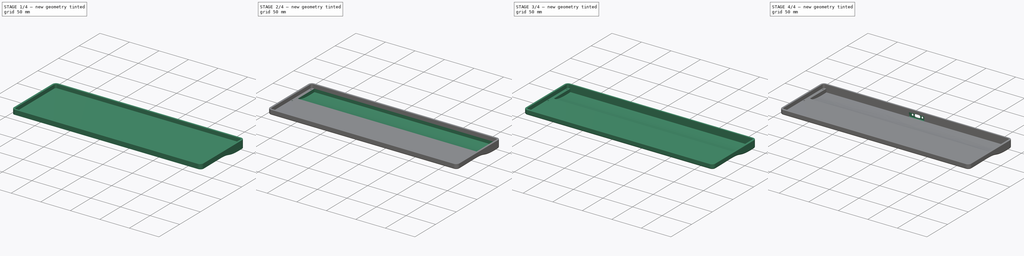
[diagram: build sequence overview — one tinted view per stage of 4, left to right]
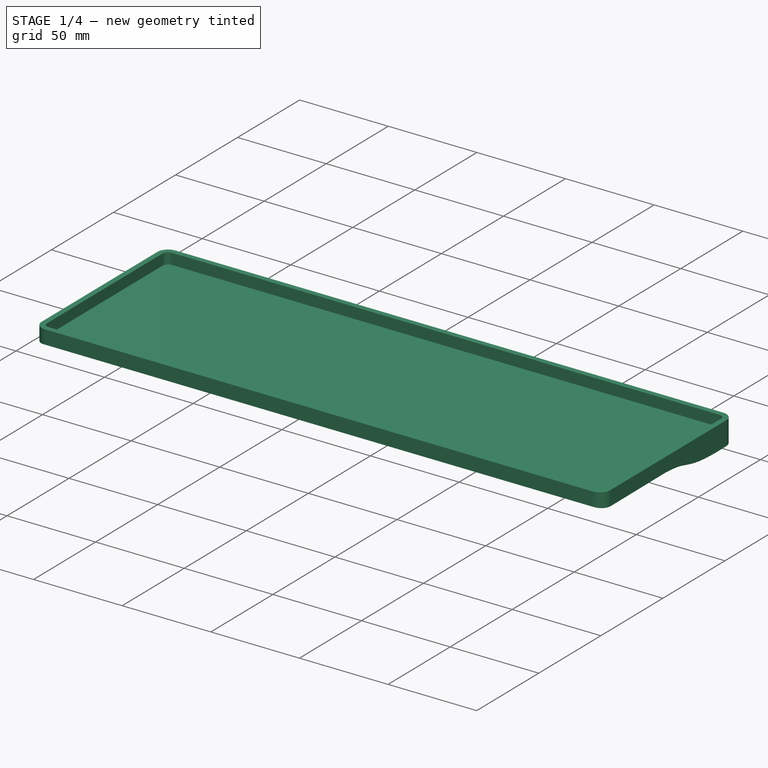
[diagram: stage 1 of 4 — iso view after this stage's code; geometry added in this stage tinted green]
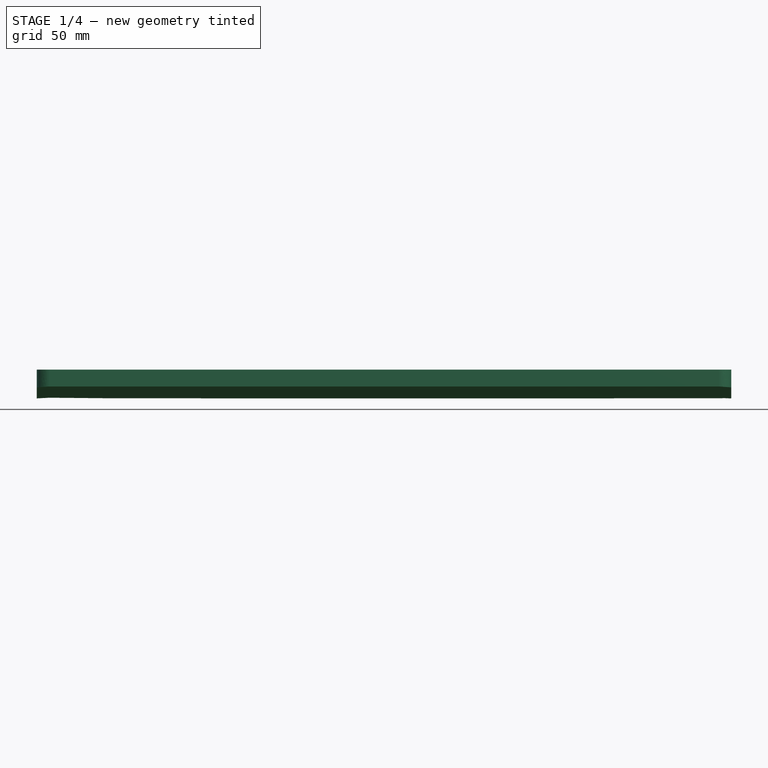
[diagram: stage 1 of 4 — front view after this stage's code; geometry added in this stage tinted green]
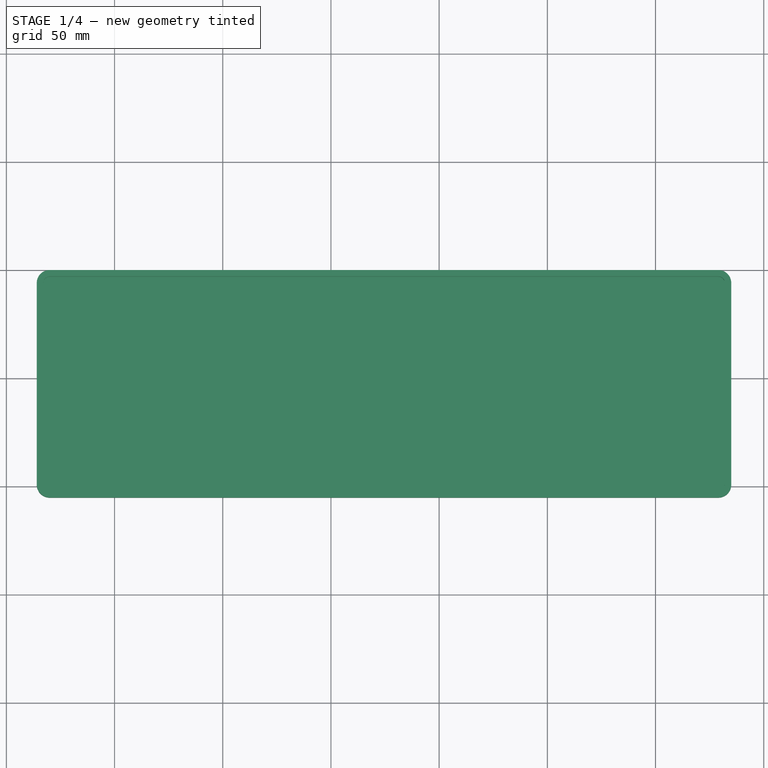
[diagram: stage 1 of 4 — top view after this stage's code; geometry added in this stage tinted green]
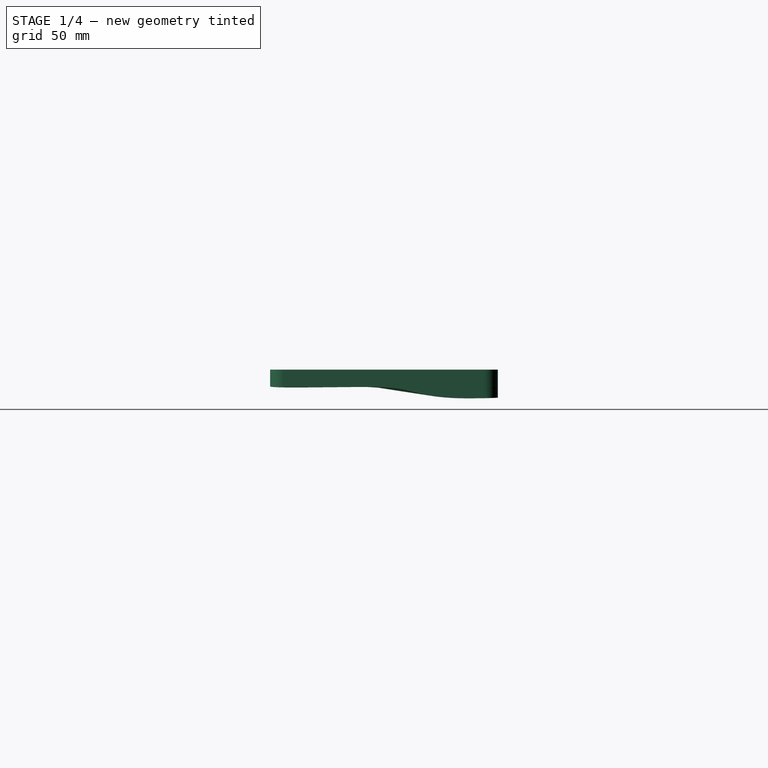
[diagram: stage 1 of 4 — right view after this stage's code; geometry added in this stage tinted green]
FCSTD DOCUMENT  (FreeCAD 1.0R39109 (Git))
Label: TReK_TijuanaLP_Case
License: All rights reserved
LicenseURL: http://en.wikipedia.org/wiki/All_rights_reserved
objects: Sketcher::SketchObject×8, PartDesign::Pocket×7, PartDesign::Fillet×3, PartDesign::Pad×1, PartDesign::Body×1
note: 50 computed .brp shape members not serialized (recipe doc carries the construction recipe); baked Part::Feature solids carry a one-line shape summary decoded from their .brp

FEATURE [Sketcher::SketchObject] Sketch  label="ネジ穴"
  ArcFitTolerance = 1e-06
  FullyConstrained = false
  MakeInternals = false
  sketch-geometry (6):
    g0: BSplineCurve PolesCount=7 KnotsCount=4 Degree=2 IsPeriodic=0
    g1: BSplineCurve PolesCount=7 KnotsCount=4 Degree=2 IsPeriodic=0
    g2: BSplineCurve PolesCount=7 KnotsCount=4 Degree=2 IsPeriodic=0
    g3: BSplineCurve PolesCount=7 KnotsCount=4 Degree=2 IsPeriodic=0
    g4: BSplineCurve PolesCount=7 KnotsCount=4 Degree=2 IsPeriodic=0
    g5: BSplineCurve PolesCount=7 KnotsCount=4 Degree=2 IsPeriodic=0
FEATURE [Sketcher::SketchObject] Sketch001  label="内側外形線"
  ArcFitTolerance = 1e-06
  FullyConstrained = false
  MakeInternals = false
  sketch-geometry (8):
    g0: BSplineCurve PolesCount=3 KnotsCount=2 Degree=2 IsPeriodic=0
    g1: BSplineCurve PolesCount=2 KnotsCount=2 Degree=1 IsPeriodic=0
    g2: BSplineCurve PolesCount=3 KnotsCount=2 Degree=2 IsPeriodic=0
    g3: BSplineCurve PolesCount=2 KnotsCount=2 Degree=1 IsPeriodic=0
    g4: BSplineCurve PolesCount=3 KnotsCount=2 Degree=2 IsPeriodic=0
    g5: BSplineCurve PolesCount=2 KnotsCount=2 Degree=1 IsPeriodic=0
    g6: BSplineCurve PolesCount=3 KnotsCount=2 Degree=2 IsPeriodic=0
    g7: BSplineCurve PolesCount=2 KnotsCount=2 Degree=1 IsPeriodic=0
FEATURE [Sketcher::SketchObject] Sketch002  label="外側外形線"
  ArcFitTolerance = 1e-06
  FullyConstrained = false
  MakeInternals = false
  sketch-geometry (8):
    g0: BSplineCurve PolesCount=2 KnotsCount=2 Degree=1 IsPeriodic=0
    g1: BSplineCurve PolesCount=3 KnotsCount=2 Degree=2 IsPeriodic=0
    g2: BSplineCurve PolesCount=2 KnotsCount=2 Degree=1 IsPeriodic=0
    g3: BSplineCurve PolesCount=2 KnotsCount=2 Degree=1 IsPeriodic=0
    g4: BSplineCurve PolesCount=3 KnotsCount=2 Degree=2 IsPeriodic=0
    g5: BSplineCurve PolesCount=3 KnotsCount=2 Degree=2 IsPeriodic=0
    g6: BSplineCurve PolesCount=3 KnotsCount=2 Degree=2 IsPeriodic=0
    g7: BSplineCurve PolesCount=2 KnotsCount=2 Degree=1 IsPeriodic=0
FEATURE [PartDesign::Pad] Pad  label="Pad（外側外形線）"
  Direction = (0,0,1)
  Length = 25
  Length2 = 10
  Profile = -> Sketch002
  ReferenceAxis = -> Sketch002 [N_Axis]
  Refine = true
  Reversed = true
  Suppressed = false
  Type = 0
FEATURE [Sketcher::SketchObject] Sketch003  label="チルトカット"
  ArcFitTolerance = 1e-06
  AttachmentSupport = -> [Pad]
  ExternalGeometry = -> [Pad]
  FullyConstrained = false
  MakeInternals = false
  MapMode = 5
  Placement = pos=(14.0416,0,0) rot=(0.57735,-0.57735,-0.57735;2.0944rad)
  sketch-geometry (18):
    g0: LineSegment StartX=0.05 StartY=-13 StartZ=0 EndX=0.05 EndY=-27.8 EndZ=0
    g1: LineSegment StartX=0.05 StartY=-27.8 StartZ=0 EndX=105.25 EndY=-27.8 EndZ=0
    g2: LineSegment StartX=105.25 StartY=-27.8 StartZ=0 EndX=105.25 EndY=-7.8 EndZ=0
    g3: LineSegment [constr] StartX=105.25 StartY=-7.8 StartZ=0 EndX=105.25 EndY=0 EndZ=0
    g4: LineSegment [constr] StartX=0.05 StartY=0 StartZ=0 EndX=0.05 EndY=-13 EndZ=0
    g5-g10: Circle [constr] x6 (B-spline internal-alignment scaffolding for g11; pole/knot coordinates omitted)
    g11: BSplineCurve PolesCount=6 KnotsCount=4 Degree=3 IsPeriodic=0
    g12-g15: GeomPoint [constr] x4 (B-spline internal-alignment scaffolding for g11; pole/knot coordinates omitted)
    g16: LineSegment [constr] StartX=105.25 StartY=-7.8 StartZ=0 EndX=0.05 EndY=-7.8 EndZ=0
    g17: LineSegment [constr] StartX=0.05 StartY=-13 StartZ=0 EndX=18.05 EndY=-13 EndZ=0
  constraints (26):
    c: PointOnObject(g0,g-6)
    c: Vertical(g0)
    c: Coincident(g0,g1)
    c: Horizontal(g1)
    c: Coincident(g1,g2)
    c: PointOnObject(g2,g-5)
    c: Vertical(g2)
    c: DistanceY(g2,g2) = 20
    c: Coincident(g3,g2)
    c: Coincident(g3,g-5)
    c: DistanceY(g3,g3) = 7.8
    c: Distance(g4) = 13
    c: Coincident(g4,g-6)
    c: Coincident(g4,g0)
    c: Weight(g5) = 1
    c: Equal(g5, g6-g10) x5
    c: InternalAlignment(g5-g10 -> g11) x6
    c: InternalAlignment(g12-g15 -> g11) x4
    c: Coincident(g5,g0)
    c: Coincident(g10,g2)
    c: Coincident(g16,g11)
    c: PointOnObject(g16,g4)
    c: Horizontal(g16)
    c: Horizontal(g17)
    c: DistanceX(g17,g17) = 18
    c: Coincident(g11,g17)
FEATURE [PartDesign::Pocket] Pocket  label="Pocket（チルトカット）"
  BaseFeature = -> Pad
  Direction = (1,0,0)
  Length = 5
  Length2 = 5
  Profile = -> Sketch003
  ReferenceAxis = -> Sketch003 [N_Axis]
  Refine = true
  Suppressed = false
  Type = 1
FEATURE [PartDesign::Pocket] Pocket001  label="Pocket001（内側外形線）"
  BaseFeature = -> Pocket
  Direction = (0,0,-1)
  Length = 6.2
  Length2 = 5
  Profile = -> Sketch001
  ReferenceAxis = -> Sketch001 [N_Axis]
  Refine = true
  Suppressed = false
  Type = 0
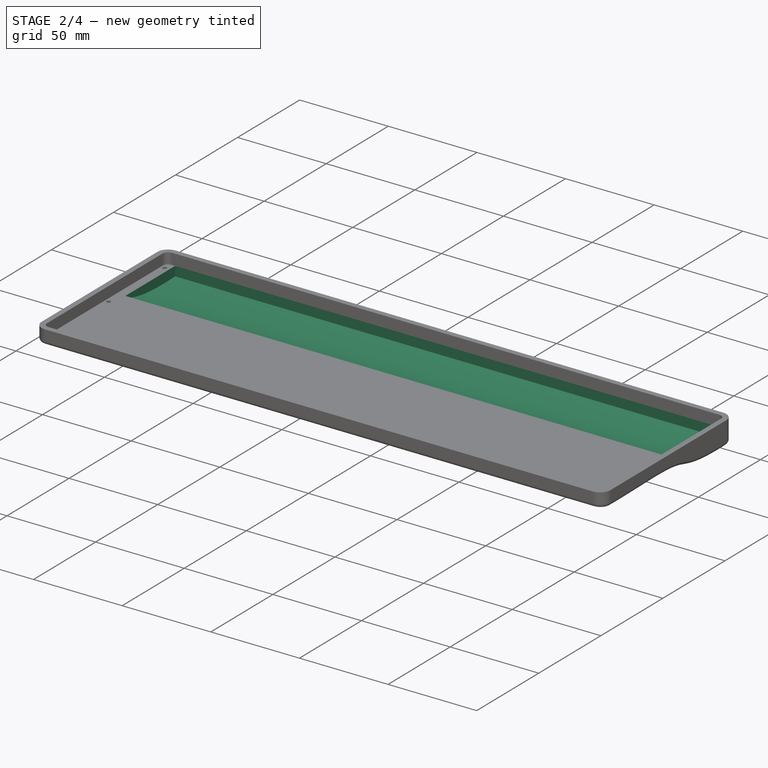
[diagram: stage 2 of 4 — iso view after this stage's code; geometry added in this stage tinted green]
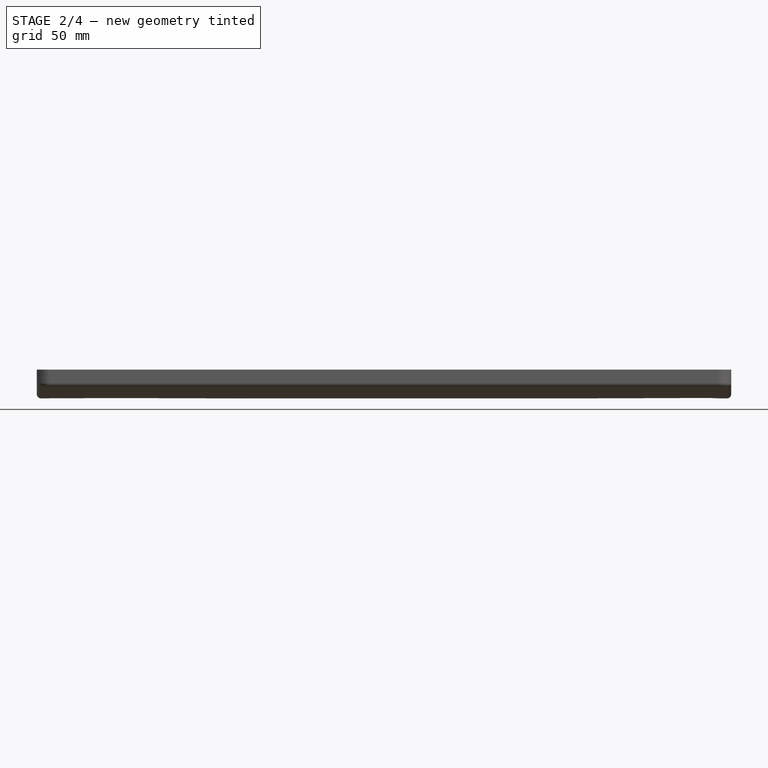
[diagram: stage 2 of 4 — front view after this stage's code; geometry added in this stage tinted green]
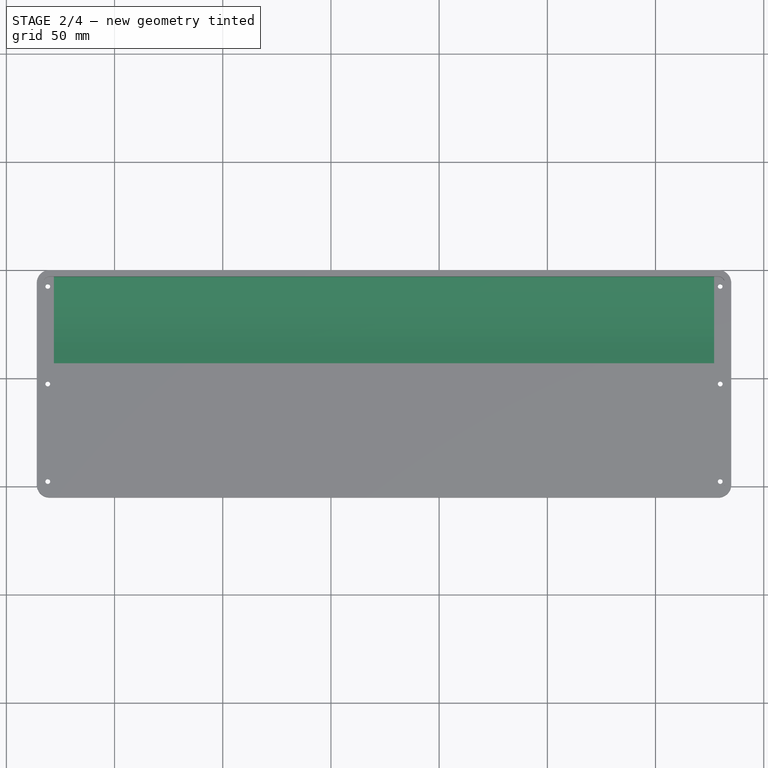
[diagram: stage 2 of 4 — top view after this stage's code; geometry added in this stage tinted green]
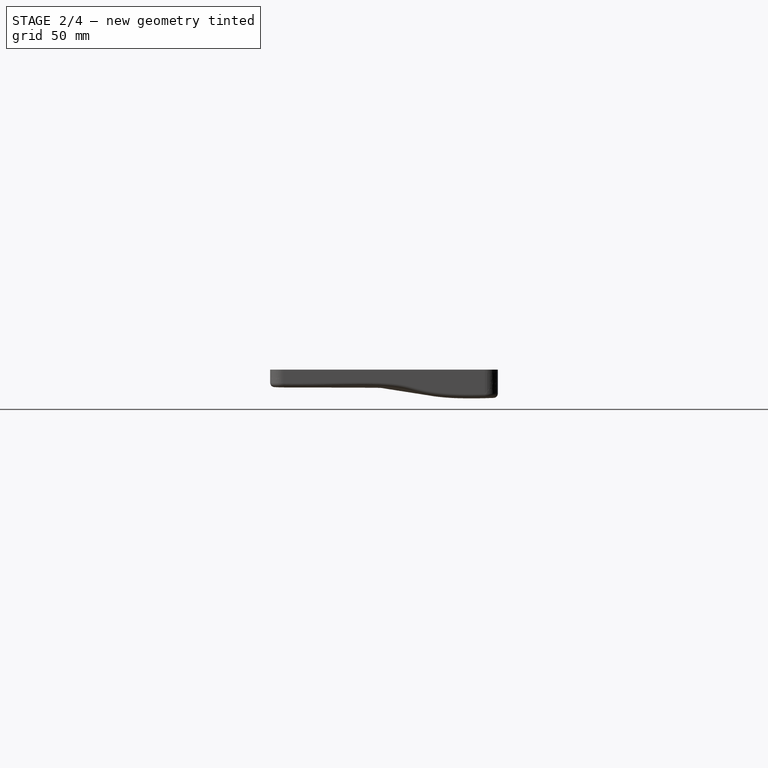
[diagram: stage 2 of 4 — right view after this stage's code; geometry added in this stage tinted green]
FEATURE [Sketcher::SketchObject] Sketch004  label="MCU部"
  ArcFitTolerance = 1e-06
  AttachmentSupport = -> [Pocket001]
  ExternalGeometry = -> [Pocket001]
  FullyConstrained = true
  MakeInternals = false
  MapMode = 5
  Placement = pos=(0,0,-6.2) rot=(0,0,1;0rad)
  sketch-geometry (6):
    g0: LineSegment StartX=21.9416 StartY=-3.05 StartZ=0 EndX=21.9416 EndY=-43.05 EndZ=0
    g1: LineSegment StartX=21.9416 StartY=-43.05 StartZ=0 EndX=327.092 EndY=-43.05 EndZ=0
    g2: LineSegment StartX=327.092 StartY=-43.05 StartZ=0 EndX=327.092 EndY=-3.05 EndZ=0
    g3: LineSegment StartX=327.092 StartY=-3.05 StartZ=0 EndX=21.9416 EndY=-3.05 EndZ=0
    g4: LineSegment [constr] StartX=327.092 StartY=-43.05 StartZ=0 EndX=331.992 EndY=-43.05 EndZ=0
    g5: LineSegment [constr] StartX=21.9416 StartY=-43.05 StartZ=0 EndX=17.0416 EndY=-43.05 EndZ=0
  constraints (18):
    c: Coincident(g0,g1)
    c: Coincident(g1,g2)
    c: Coincident(g2,g3)
    c: Coincident(g3,g0)
    c: Vertical(g0)
    c: Vertical(g2)
    c: Horizontal(g1)
    c: Horizontal(g3)
    c: Distance(g4) = 4.9
    c: Coincident(g4,g1)
    c: PointOnObject(g4,g-5)
    c: Horizontal(g4)
    c: Distance(g5) = 4.9
    c: Coincident(g5,g0)
    c: PointOnObject(g5,g-4)
    c: Horizontal(g5)
    c: PointOnObject(g0,g-3)
    c: DistanceY(g0,g0) = 40
FEATURE [PartDesign::Pocket] Pocket002  label="Pocket002（MCU部）"
  BaseFeature = -> Pocket001
  Direction = (0,0,-1)
  Length = 0
  Length2 = 5
  Offset = -1.6
  Profile = -> Sketch004
  ReferenceAxis = -> Sketch004 [N_Axis]
  Refine = true
  Suppressed = false
  Type = 3
  UpToFace = -> Pocket001 [Face4]
FEATURE [PartDesign::Pocket] Pocket003  label="Pocket003（ネジ穴）"
  BaseFeature = -> Pocket002
  Direction = (0,0,-1)
  Length = 5
  Length2 = 5
  Profile = -> Sketch
  ReferenceAxis = -> Sketch [N_Axis]
  Refine = true
  Suppressed = false
  Type = 1
FEATURE [Sketcher::SketchObject] Sketch005  label="ネジ穴ザグリ"
  ArcFitTolerance = 1e-06
  AttachmentSupport = -> [Pad]
  ExternalGeometry = -> [Pocket003]
  FullyConstrained = true
  MakeInternals = false
  MapMode = 5
  Placement = pos=(0,0,-25) rot=(1,0,0;3.14159rad)
  sketch-geometry (12):
    g0: LineSegment [constr] StartX=20.2416 StartY=97.75 StartZ=0 EndX=18.0416 EndY=97.75 EndZ=0
    g1: LineSegment [constr] StartX=20.2416 StartY=52.65 StartZ=0 EndX=18.0416 EndY=52.65 EndZ=0
    g2: LineSegment [constr] StartX=20.2416 StartY=7.55 StartZ=0 EndX=18.0416 EndY=7.55 EndZ=0
    g3: LineSegment [constr] StartX=330.992 StartY=97.75 StartZ=0 EndX=328.792 EndY=97.75 EndZ=0
    g4: LineSegment [constr] StartX=330.992 StartY=52.65 StartZ=0 EndX=328.792 EndY=52.65 EndZ=0
    g5: LineSegment [constr] StartX=330.992 StartY=7.55 StartZ=0 EndX=328.792 EndY=7.55 EndZ=0
    g6: Circle CenterX=329.892 CenterY=7.55 CenterZ=0 NormalX=0 NormalY=0 NormalZ=1 AngleXU=0 Radius=2.3
    g7: Circle CenterX=329.892 CenterY=52.65 CenterZ=0 NormalX=0 NormalY=0 NormalZ=1 AngleXU=0 Radius=2.3
    g8: Circle CenterX=329.892 CenterY=97.75 CenterZ=0 NormalX=0 NormalY=0 NormalZ=1 AngleXU=0 Radius=2.3
    g9: Circle CenterX=19.1416 CenterY=97.75 CenterZ=0 NormalX=0 NormalY=0 NormalZ=1 AngleXU=0 Radius=2.3
    g10: Circle CenterX=19.1416 CenterY=52.65 CenterZ=0 NormalX=0 NormalY=0 NormalZ=1 AngleXU=0 Radius=2.3
    g11: Circle CenterX=19.1416 CenterY=7.55 CenterZ=0 NormalX=0 NormalY=0 NormalZ=1 AngleXU=0 Radius=2.3
  constraints (30):
    c: Coincident(g0,g-3)
    c: PointOnObject(g0,g-3)
    c: Horizontal(g0)
    c: Coincident(g1,g-4)
    c: PointOnObject(g1,g-4)
    c: Horizontal(g1)
    c: Coincident(g2,g-5)
    c: PointOnObject(g2,g-5)
    c: Horizontal(g2)
    c: Coincident(g3,g-6)
    c: PointOnObject(g3,g-6)
    c: Horizontal(g3)
    c: Coincident(g4,g-7)
    c: PointOnObject(g4,g-7)
    c: Horizontal(g4)
    c: Coincident(g5,g-8)
    c: PointOnObject(g5,g-8)
    c: Horizontal(g5)
    c: Diameter(g6) = 4.6
    c: Symmetric(g5,g5,g6)
    c: Diameter(g7) = 4.6
    c: Symmetric(g4,g4,g7)
    c: Diameter(g8) = 4.6
    c: Symmetric(g3,g3,g8)
    c: Diameter(g9) = 4.6
    c: Symmetric(g0,g0,g9)
    c: Diameter(g10) = 4.6
    c: Symmetric(g1,g1,g10)
    c: Diameter(g11) = 4.6
    c: Symmetric(g2,g2,g11)
FEATURE [Sketcher::SketchObject] Sketch006  label="USB枠"
  ArcFitTolerance = 1e-06
  AttachmentSupport = -> [Pocket003]
  ExternalGeometry = -> [Pocket003]
  FullyConstrained = true
  MakeInternals = false
  MapMode = 5
  Placement = pos=(0,-3.05,0) rot=(1,0,0;1.5708rad)
  sketch-geometry (16):
    g0: LineSegment StartX=161.517 StartY=-5.74781 StartZ=0 EndX=161.517 EndY=-10.9478 EndZ=0
    g1: LineSegment StartX=162.517 StartY=-11.9478 StartZ=0 EndX=186.517 EndY=-11.9478 EndZ=0
    g2: LineSegment StartX=187.517 StartY=-10.9478 StartZ=0 EndX=187.517 EndY=-5.74781 EndZ=0
    g3: LineSegment StartX=186.517 StartY=-4.74781 StartZ=0 EndX=162.517 EndY=-4.74781 EndZ=0
    g4: ArcOfCircle CenterX=162.517 CenterY=-5.74781 CenterZ=0 NormalX=0 NormalY=0 NormalZ=1 AngleXU=0 Radius=1 StartAngle=1.5708 EndAngle=3.14159
    g5: GeomPoint [constr] X=161.517 Y=-4.74781 Z=0
    g6: ArcOfCircle CenterX=162.517 CenterY=-10.9478 CenterZ=0 NormalX=0 NormalY=0 NormalZ=1 AngleXU=0 Radius=1 StartAngle=3.14159 EndAngle=4.71239
    g7: GeomPoint [constr] X=161.517 Y=-11.9478 Z=0
    g8: ArcOfCircle CenterX=186.517 CenterY=-5.74781 CenterZ=0 NormalX=0 NormalY=0 NormalZ=1 AngleXU=0 Radius=1 StartAngle=3e-16 EndAngle=1.5708
    g9: GeomPoint [constr] X=187.517 Y=-4.74781 Z=0
    g10: ArcOfCircle CenterX=186.517 CenterY=-10.9478 CenterZ=0 NormalX=0 NormalY=0 NormalZ=1 AngleXU=0 Radius=1 StartAngle=4.71239 EndAngle=6.28319
    g11: GeomPoint [constr] X=187.517 Y=-11.9478 Z=0
    g12: LineSegment [constr] StartX=162.517 StartY=-11.9478 StartZ=0 EndX=162.517 EndY=-4.74781 EndZ=0
    g13: GeomPoint [constr] X=174.517 Y=-4.74781 Z=0
    g14: GeomPoint [constr] X=174.517 Y=-5.2 Z=0
    g15: LineSegment [constr] StartX=174.517 StartY=-5.2 StartZ=0 EndX=174.517 EndY=-2.2 EndZ=0
  constraints (37):
    c: Vertical(g0)
    c: Vertical(g2)
    c: Horizontal(g1)
    c: PointOnObject(g7,g-4)
    c: DistanceX(g7,g11) = 26
    c: PointOnObject(g5,g0)
    c: PointOnObject(g5,g3)
    c: Tangent(g0,g4) = -1.5708
    c: Tangent(g3,g4) = -1.5708
    c: PointOnObject(g7,g0)
    c: PointOnObject(g7,g1)
    c: Tangent(g0,g6) = -1.5708
    c: Tangent(g1,g6) = -1.5708
    c: PointOnObject(g9,g3)
    c: PointOnObject(g9,g2)
    c: Tangent(g3,g8) = -1.5708
    c: Tangent(g2,g8) = -1.5708
    c: PointOnObject(g11,g2)
    c: PointOnObject(g11,g1)
    c: Tangent(g2,g10) = -1.5708
    c: Tangent(g1,g10) = -1.5708
    c: Diameter(g8) = 2
    c: Diameter(g10) = 2
    c: Diameter(g4) = 2
    c: Diameter(g6) = 2
    c: Distance(g12) = 7.2
    c: Vertical(g12)
    c: PointOnObject(g12,g-4)
    c: Coincident(g3,g12)
    c: Horizontal(g3)
    c: Symmetric(g3,g3,g13)
    c: PointOnObject(g14,g-5)
    c: Symmetric(g-5,g-5,g14)
    c: Coincident(g15,g14)
    c: Vertical(g15)
    c: DistanceY(g15,g15) = 3
    c: PointOnObject(g13,g15)
FEATURE [Sketcher::SketchObject] Sketch007  label="USB穴"
  ArcFitTolerance = 1e-06
  FullyConstrained = true
  MakeInternals = false
  MapMode = 5
  Placement = pos=(0,-0.05,0) rot=(0,0.707107,0.707107;3.14159rad)
  sketch-geometry (15):
    g0: ArcOfCircle CenterX=-177.117 CenterY=-8.34781 CenterZ=0 NormalX=0 NormalY=0 NormalZ=1 AngleXU=0 Radius=2.4 StartAngle=1.5708 EndAngle=4.71239
    g1: ArcOfCircle CenterX=-171.917 CenterY=-8.34781 CenterZ=0 NormalX=0 NormalY=0 NormalZ=1 AngleXU=0 Radius=2.4 StartAngle=4.71239 EndAngle=7.85398
    g2: LineSegment StartX=-177.117 StartY=-5.94781 StartZ=0 EndX=-171.917 EndY=-5.94781 EndZ=0
    g3: LineSegment StartX=-177.117 StartY=-10.7478 StartZ=0 EndX=-171.917 EndY=-10.7478 EndZ=0
    g4: GeomPoint [constr] X=-174.517 Y=-8.34781 Z=0
    g5: LineSegment [constr] StartX=-177.117 StartY=-8.34781 StartZ=0 EndX=-171.917 EndY=-8.34781 EndZ=0
    g6: GeomPoint [constr] X=-174.517 Y=-8.34781 Z=0
    g7: Circle CenterX=-182.767 CenterY=-8.34781 CenterZ=0 NormalX=0 NormalY=0 NormalZ=1 AngleXU=0 Radius=1.6
    g8: Circle CenterX=-166.267 CenterY=-8.34781 CenterZ=0 NormalX=0 NormalY=0 NormalZ=1 AngleXU=0 Radius=1.6
    g9: LineSegment [constr] StartX=-182.767 StartY=-8.34781 StartZ=0 EndX=-166.267 EndY=-8.34781 EndZ=0
    g10: GeomPoint [constr] X=-174.517 Y=-8.34781 Z=0
    g11: GeomPoint [constr] X=-187.517 Y=-8.34781 Z=0
    g12: GeomPoint [constr] X=-161.517 Y=-8.34781 Z=0
    g13: LineSegment [constr] StartX=-187.517 StartY=-8.34781 StartZ=0 EndX=-161.517 EndY=-8.34781 EndZ=0
    g14: GeomPoint [constr] X=-174.517 Y=-8.34781 Z=0
  constraints (26):
    c: Tangent(g0,g2) = 1.5708
    c: Tangent(g0,g3) = -1.5708
    c: Tangent(g1,g2) = 1.5708
    c: Tangent(g1,g3) = -1.5708
    c: Equal(g0,g1)
    c: Horizontal(g3)
    c: Distance(g0,g1) = 5.2
    c: Diameter(g0) = 4.8
    c: Coincident(g5,g0)
    c: Coincident(g5,g1)
    c: Symmetric(g5,g5,g6)
    c: Coincident(g6,g4)
    c: Diameter(g7) = 3.2
    c: Diameter(g8) = 3.2
    c: Distance(g7,g8) = 16.5
    c: Coincident(g9,g7)
    c: Coincident(g9,g8)
    c: Horizontal(g9)
    c: Symmetric(g9,g9,g10)
    c: Coincident(g10,g4)
    c: Symmetric(g-4,g-4,g11)
    c: Symmetric(g-3,g-3,g12)
    c: Coincident(g13,g11)
    c: Coincident(g13,g12)
    c: Symmetric(g13,g13,g14)
    c: Coincident(g4,g14)
FEATURE [PartDesign::Fillet] Fillet  label="Fillet（外周底部）"
  Base = -> Pocket003 [Edge26]
  BaseFeature = -> Pocket003
  Radius = 2
  Refine = true
  SupportTransform = false
  Suppressed = false
  UseAllEdges = false
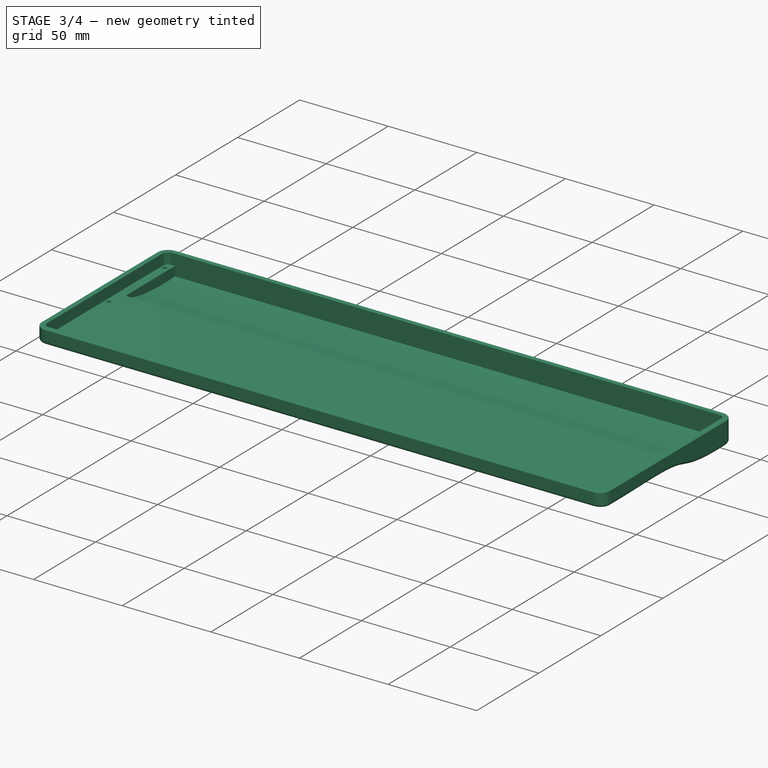
[diagram: stage 3 of 4 — iso view after this stage's code; geometry added in this stage tinted green]
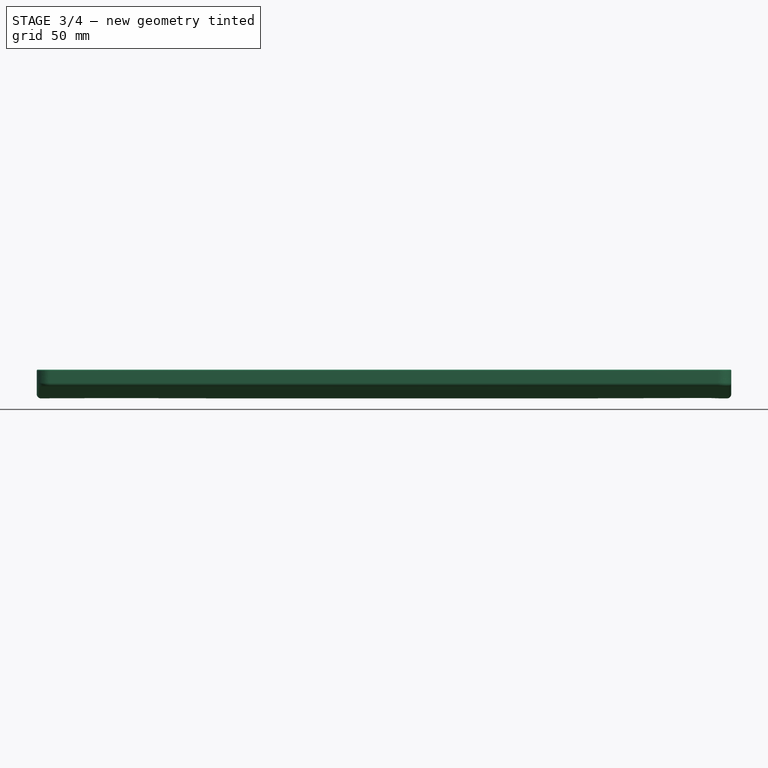
[diagram: stage 3 of 4 — front view after this stage's code; geometry added in this stage tinted green]
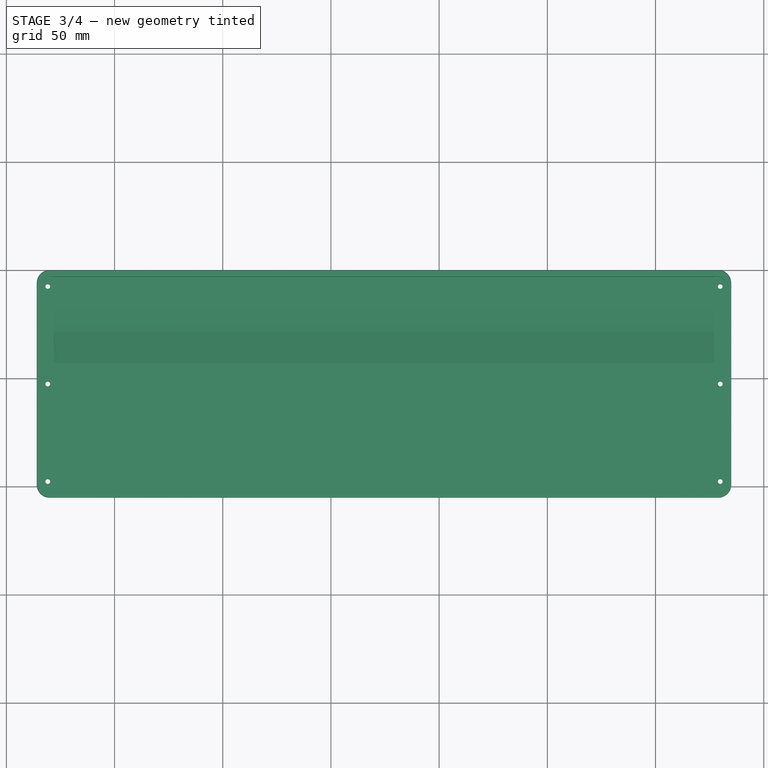
[diagram: stage 3 of 4 — top view after this stage's code; geometry added in this stage tinted green]
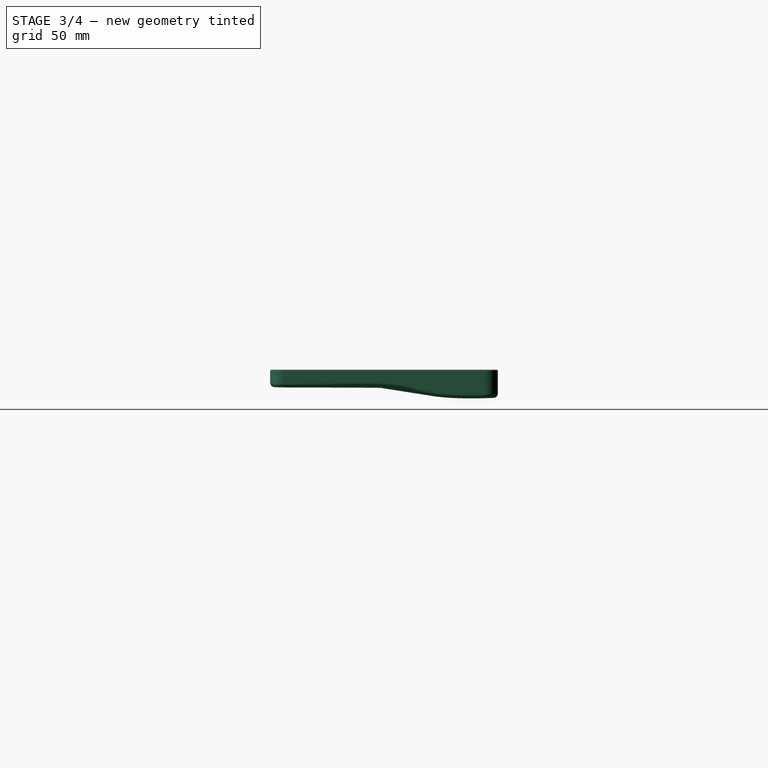
[diagram: stage 3 of 4 — right view after this stage's code; geometry added in this stage tinted green]
FEATURE [PartDesign::Fillet] Fillet001  label="Fillet001（外周上部）"
  Base = -> Fillet [Edge12]
  BaseFeature = -> Fillet
  Radius = 0.5
  Refine = true
  SupportTransform = false
  Suppressed = false
  UseAllEdges = false
FEATURE [PartDesign::Fillet] Fillet003  label="Fillet003（MCU部内側サイド）"
  Base = -> Fillet001 [Edge107,Edge109]
  BaseFeature = -> Fillet001
  Radius = 1.5
  Refine = true
  SupportTransform = false
  Suppressed = false
  UseAllEdges = false
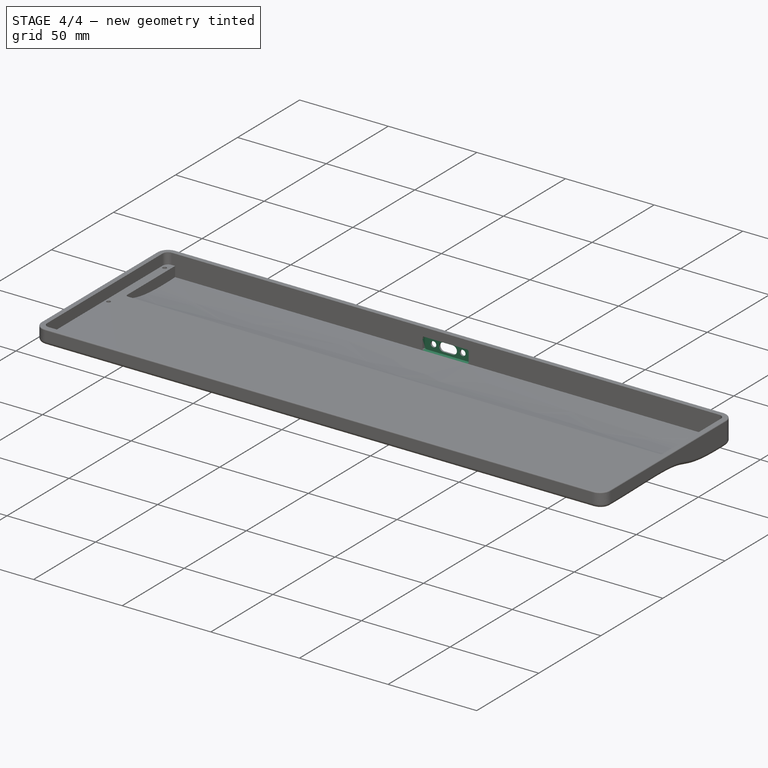
[diagram: stage 4 of 4 — iso view after this stage's code; geometry added in this stage tinted green]
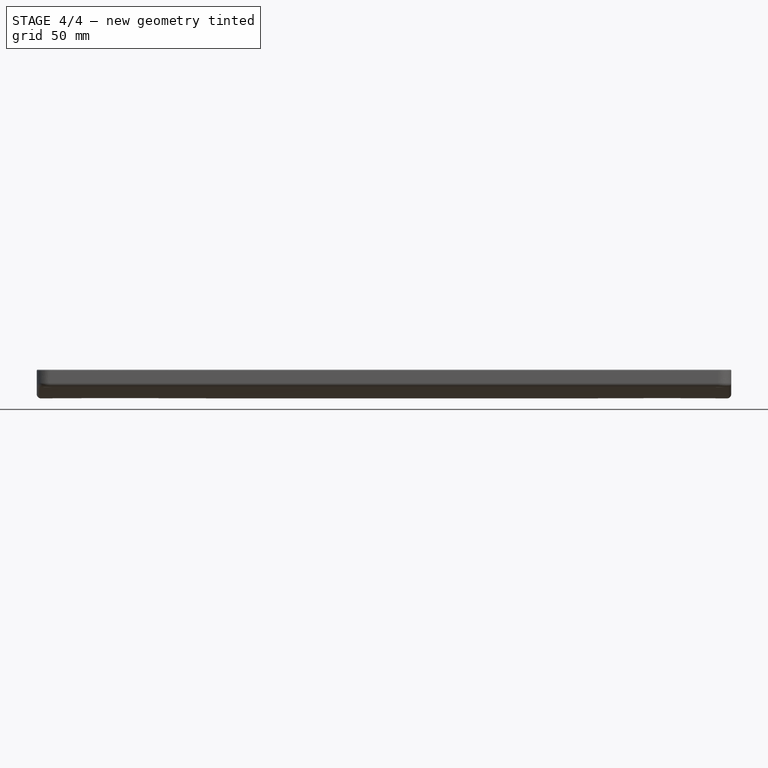
[diagram: stage 4 of 4 — front view after this stage's code; geometry added in this stage tinted green]
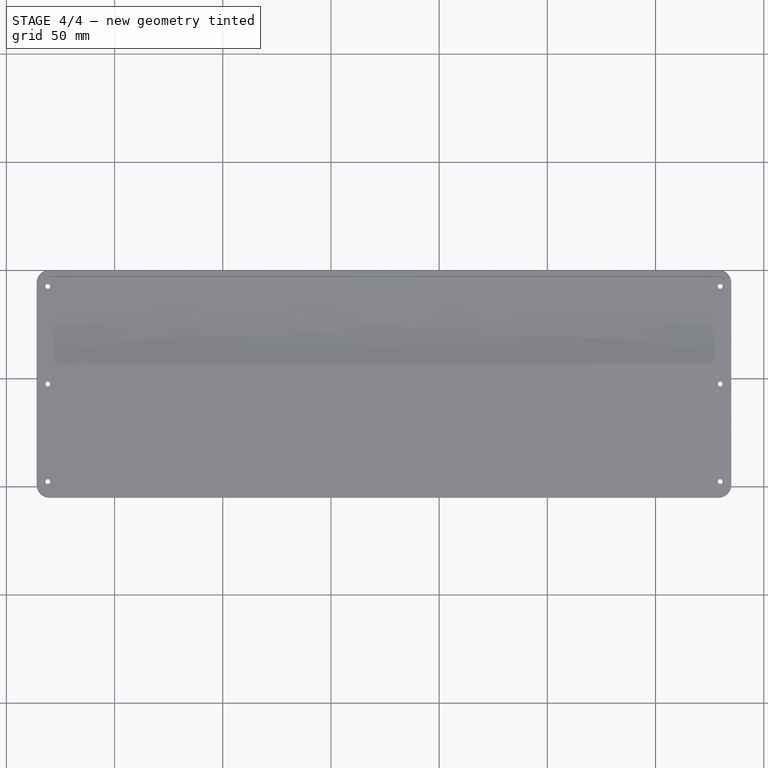
[diagram: stage 4 of 4 — top view after this stage's code; geometry added in this stage tinted green]
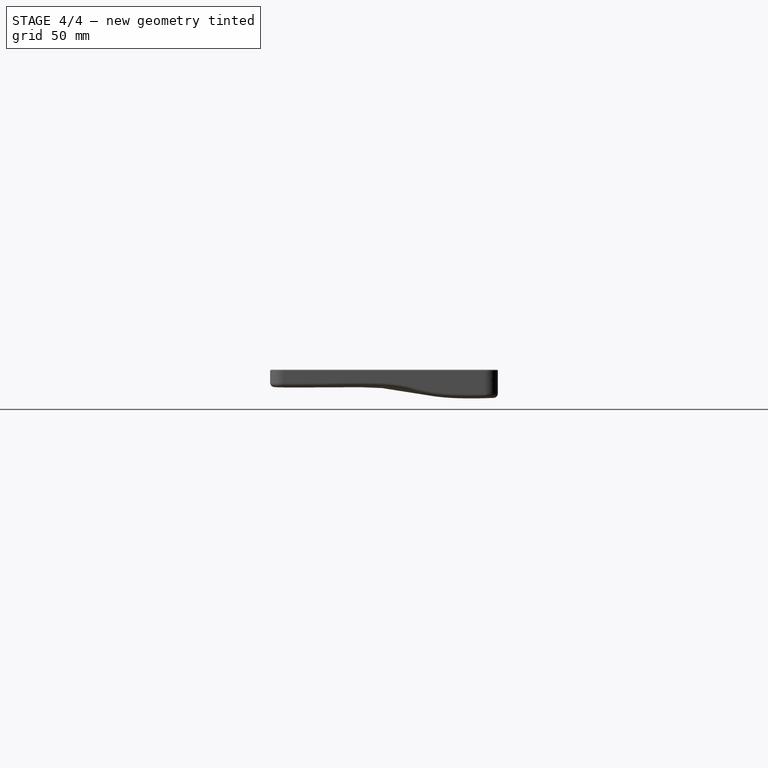
[diagram: stage 4 of 4 — right view after this stage's code; geometry added in this stage tinted green]
FEATURE [PartDesign::Pocket] Pocket007  label="Pocket007（ネジ穴ザグリ）"
  BaseFeature = -> Fillet003
  Direction = (0,0,1)
  Length = 0
  Length2 = 5
  Offset = -1.2
  Profile = -> Sketch005
  ReferenceAxis = -> Sketch005 [N_Axis]
  Refine = true
  Suppressed = false
  Type = 3
  UpToFace = -> Fillet003 [Face1]
FEATURE [PartDesign::Pocket] Pocket008  label="Pocket008（USB枠）"
  BaseFeature = -> Pocket007
  Direction = (1,1,1)
  Length = 2
  Length2 = 5
  Profile = -> Sketch006
  ReferenceAxis = -> Sketch006 [N_Axis]
  Refine = true
  Suppressed = false
  Type = 0
FEATURE [PartDesign::Pocket] Pocket009  label="Pocket009（USB穴）"
  BaseFeature = -> Pocket008
  Direction = (0,-1,0)
  Length = 5
  Length2 = 5
  Profile = -> Sketch007
  ReferenceAxis = -> Sketch007 [N_Axis]
  Refine = true
  Suppressed = false
  Type = 0
FEATURE [PartDesign::Body] Body
  AllowCompound = false
  Group = -> [Sketch,Sketch001,Sketch002,Pad,Sketch003,Pocket,Pocket001,Sketch004,Pocket002,Pocket003,Sketch005,Sketch006,Sketch007,Fillet,Fillet001,Fillet003,Pocket007,Pocket008,Pocket009]
  Origin = -> Origin
  Tip = -> Pocket001
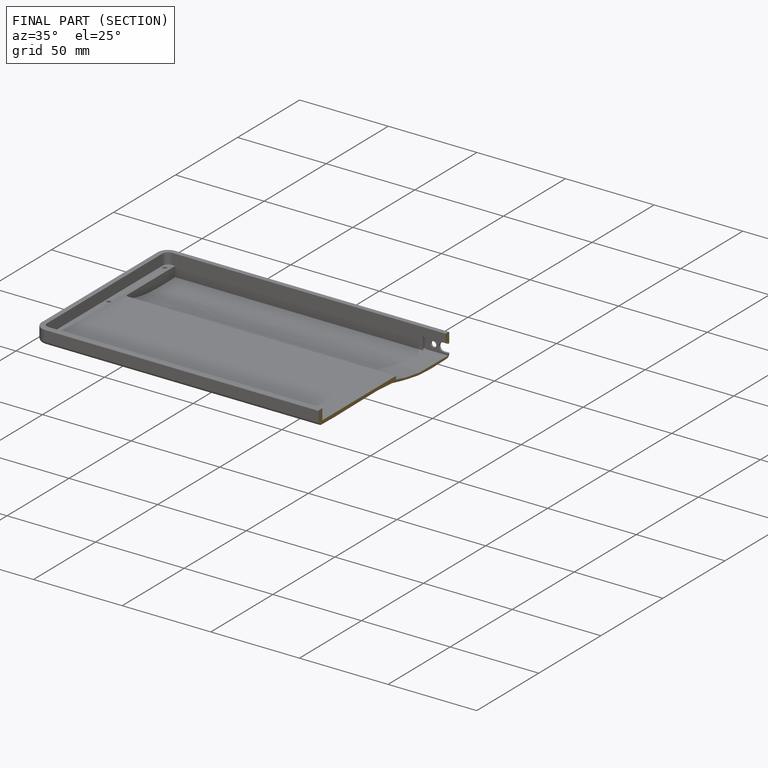
[diagram: finished part — half-section view (interior)]
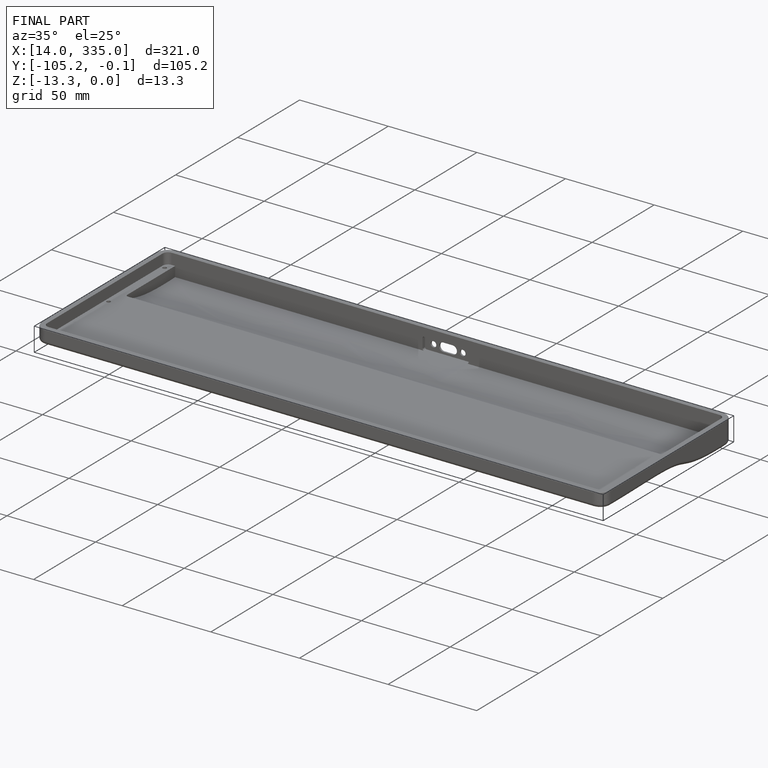
[diagram: finished part — iso view with bounding-box wireframe]
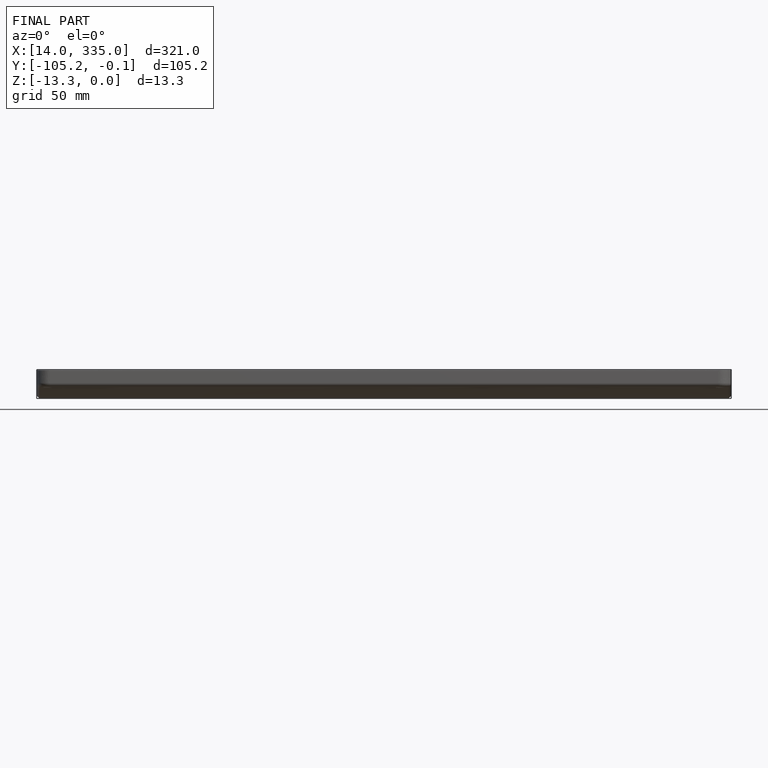
[diagram: finished part — front view with bounding-box wireframe]
